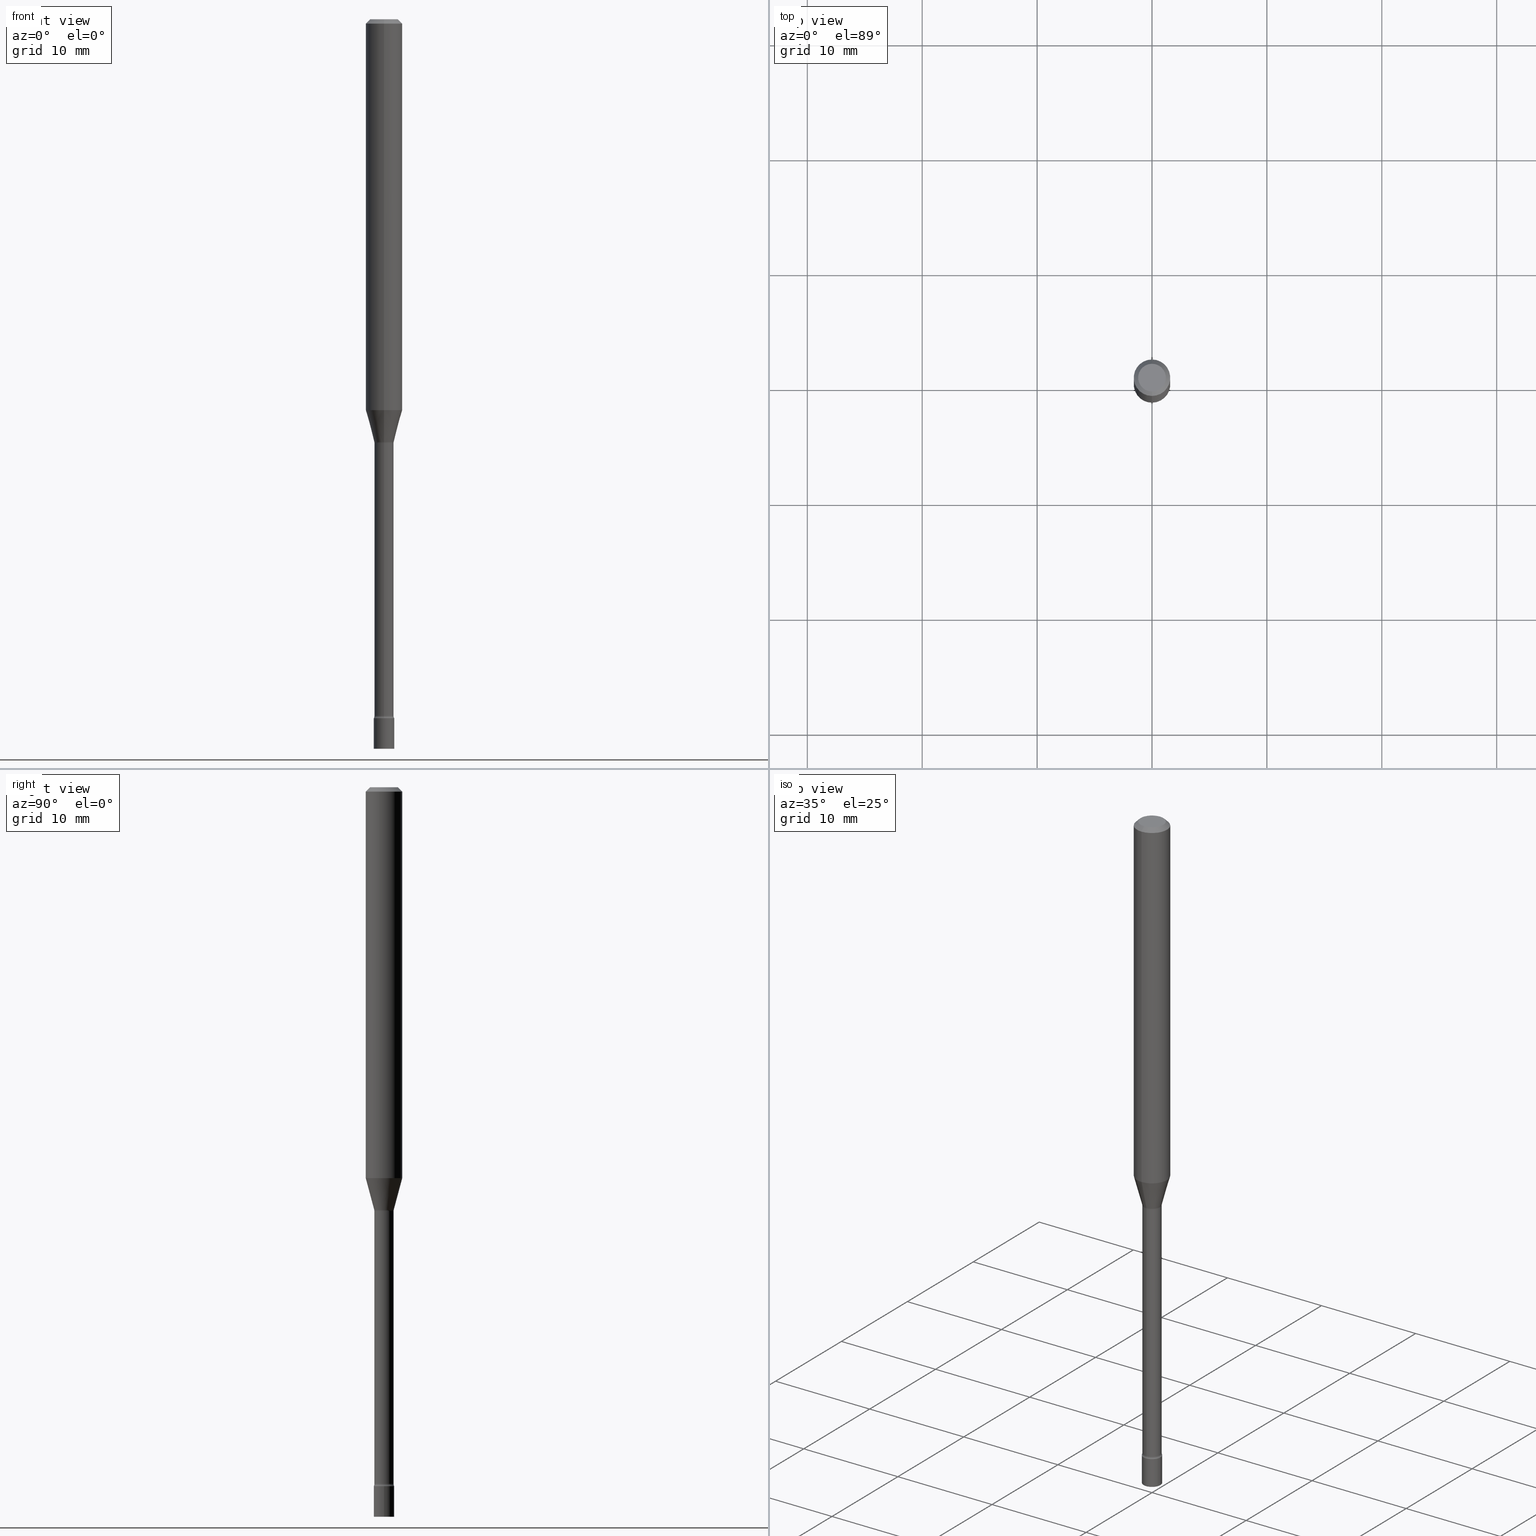
[diagram: canonical four-view strip — front | top / right | iso, engineering-drawing reading convention]
A machine part, canonical four-view strip (front | top / right | iso — engineering-drawing reading convention). The complete STEP part file that produces these views, byte-faithful:
ISO-10303-21;
HEADER;
FILE_DESCRIPTION (( 'STEP AP203' ),
    '1' );
FILE_NAME ('09701.STEP',
    '2024-03-09T01:00:11',
    ( '' ),
    ( '' ),
    'SwSTEP 2.0',
    'SolidWorks 2023',
    '' );
FILE_SCHEMA (( 'CONFIG_CONTROL_DESIGN' ));
ENDSEC;

DATA;
#1 = DIRECTION ( 'NONE',  ( 1.000000000000000000, -6.982962677686265922E-15, 4.876176775795935793E-29 ) ) ;
#2 = ORIENTED_EDGE ( 'NONE', *, *, #472, .T. ) ;
#3 = AXIS2_PLACEMENT_3D ( 'NONE', #302, #264, #430 ) ;
#4 = PLANE ( 'NONE',  #43 ) ;
#5 = DIRECTION ( 'NONE',  ( 6.982962677686265922E-15, 1.000000000000000000, -3.491411876045848246E-15 ) ) ;
#6 = CARTESIAN_POINT ( 'NONE',  ( -0.03500000000000000333, -8.296710619302563893E-15, -2.500000000000000000 ) ) ;
#7 = EDGE_CURVE ( 'NONE', #162, #398, #135, .T. ) ;
#8 = TOROIDAL_SURFACE ( 'NONE', #477, 0.04790000000000008834, 0.01500000000000003067 ) ;
#9 = DIRECTION ( 'NONE',  ( 1.000000000000000000, -6.982962677686265922E-15, 4.876176775795936353E-29 ) ) ;
#10 = ORIENTED_EDGE ( 'NONE', *, *, #128, .T. ) ;
#11 = DIRECTION ( 'NONE',  ( -6.982962677686265922E-15, -1.000000000000000000, 0.000000000000000000 ) ) ;
#12 = FACE_OUTER_BOUND ( 'NONE', #333, .T. ) ;
#13 = EDGE_CURVE ( 'NONE', #439, #66, #436, .T. ) ;
#14 = PRODUCT_DEFINITION_SHAPE ( 'NONE', 'NONE',  #453 ) ;
#15 = CARTESIAN_POINT ( 'NONE',  ( 0.000000000000000000, 0.000000000000000000, 0.000000000000000000 ) ) ;
#16 = TOROIDAL_SURFACE ( 'NONE', #57, 0.04789999999999999813, 0.01500000000000002720 ) ;
#17 = PERSON_AND_ORGANIZATION ( #462, #158 ) ;
#18 = FACE_OUTER_BOUND ( 'NONE', #138, .T. ) ;
#19 = EDGE_LOOP ( 'NONE', ( #284, #69 ) ) ;
#20 = PERSON_AND_ORGANIZATION ( #462, #158 ) ;
#21 = ORIENTED_EDGE ( 'NONE', *, *, #243, .T. ) ;
#22 = DATE_TIME_ROLE ( 'creation_date' ) ;
#23 = DIRECTION ( 'NONE',  ( -6.982962677686265922E-15, -1.000000000000000000, 4.370956789862821150E-15 ) ) ;
#24 = CONICAL_SURFACE ( 'NONE', #426, 0.06250000000000000000, 0.7853981633974483900 ) ;
#25 = CARTESIAN_POINT ( 'NONE',  ( 2.412292587906127904E-16, 0.03289999999999172753, -2.387345589506696175 ) ) ;
#26 = ORIENTED_EDGE ( 'NONE', *, *, #509, .F. ) ;
#27 = AXIS2_PLACEMENT_3D ( 'NONE', #274, #121, #193 ) ;
#28 = LINE ( 'NONE', #420, #309 ) ;
#29 = CARTESIAN_POINT ( 'NONE',  ( 5.857013961754386162E-29, -8.361931443129805162E-15, -2.395000000000000018 ) ) ;
#30 = CC_DESIGN_PERSON_AND_ORGANIZATION_ASSIGNMENT ( #20, #212, ( #52 ) ) ;
#31 = CARTESIAN_POINT ( 'NONE',  ( 3.668275967695865056E-31, -5.237117814068782255E-17, -0.01500000000000003067 ) ) ;
#32 = FACE_OUTER_BOUND ( 'NONE', #19, .T. ) ;
#33 = EDGE_LOOP ( 'NONE', ( #149, #251, #21, #186 ) ) ;
#34 = AXIS2_PLACEMENT_3D ( 'NONE', #325, #206, #491 ) ;
#35 = CARTESIAN_POINT ( 'NONE',  ( -2.333085523452891938E-16, -0.03341111260566902164, -1.448092501787273223 ) ) ;
#36 = CARTESIAN_POINT ( 'NONE',  ( -2.333085523452891938E-16, -0.03341111260566902164, -1.448092501787273223 ) ) ;
#37 = PERSON_AND_ORGANIZATION_ROLE ( 'classification_officer' ) ;
#38 = PLANE ( 'NONE',  #199 ) ;
#39 = VERTEX_POINT ( 'NONE', #35 ) ;
#40 = CARTESIAN_POINT ( 'NONE',  ( 2.444036937190778979E-16, 0.03499999999999164196, -2.395000000000000018 ) ) ;
#41 = FACE_OUTER_BOUND ( 'NONE', #223, .T. ) ;
#42 = VECTOR ( 'NONE', #510, 39.37007874015748143 ) ;
#43 = AXIS2_PLACEMENT_3D ( 'NONE', #481, #431, #5 ) ;
#44 = CARTESIAN_POINT ( 'NONE',  ( 0.000000000000000000, 0.000000000000000000, 0.000000000000000000 ) ) ;
#45 =( CONVERSION_BASED_UNIT ( 'INCH', #163 ) LENGTH_UNIT ( ) NAMED_UNIT ( #352 ) );
#46 = EDGE_CURVE ( 'NONE', #39, #231, #327, .T. ) ;
#47 = CARTESIAN_POINT ( 'NONE',  ( 5.838294968381408865E-29, -8.335206743429354077E-15, -2.387345589506696175 ) ) ;
#48 = ORIENTED_EDGE ( 'NONE', *, *, #433, .F. ) ;
#49 =( GEOMETRIC_REPRESENTATION_CONTEXT ( 3 ) GLOBAL_UNCERTAINTY_ASSIGNED_CONTEXT ( ( #411 ) ) GLOBAL_UNIT_ASSIGNED_CONTEXT ( ( #45, #363, #405 ) ) REPRESENTATION_CONTEXT ( 'NONE', 'WORKASPACE' ) );
#50 = VECTOR ( 'NONE', #51, 39.37007874015748143 ) ;
#51 = DIRECTION ( 'NONE',  ( -2.445468806185136877E-29, 3.491481338843145188E-15, 1.000000000000000000 ) ) ;
#52 = PRODUCT_DEFINITION_FORMATION_WITH_SPECIFIED_SOURCE ( 'ANY', '', #321, .NOT_KNOWN. ) ;
#53 = ADVANCED_FACE ( 'NONE', ( #222 ), #256, .F. ) ;
#54 = CARTESIAN_POINT ( 'NONE',  ( -2.297394720958425553E-16, -0.03290000000000506408, -1.451974787463811145 ) ) ;
#55 = CARTESIAN_POINT ( 'NONE',  ( 4.440892098500625669E-16, 0.06250000000000000000, -2.182132422528654908E-16 ) ) ;
#56 = PERSON_AND_ORGANIZATION ( #462, #158 ) ;
#57 = AXIS2_PLACEMENT_3D ( 'NONE', #471, #252, #104 ) ;
#58 = LOCAL_TIME ( 20, 0, 11.00000000000000000, #331 ) ;
#59 = DIRECTION ( 'NONE',  ( 1.000000000000000000, -6.982962677686276966E-15, 0.000000000000000000 ) ) ;
#60 = VERTEX_POINT ( 'NONE', #25 ) ;
#61 = CC_DESIGN_PERSON_AND_ORGANIZATION_ASSIGNMENT ( #178, #37, ( #501 ) ) ;
#62 = APPROVAL_DATE_TIME ( #518, #71 ) ;
#63 = DIRECTION ( 'NONE',  ( -6.982962677686265922E-15, -1.000000000000000000, 3.491411876045848246E-15 ) ) ;
#64 = DIRECTION ( 'NONE',  ( 1.839019923739599921E-15, 0.2588190451025249028, 0.9659258262890670910 ) ) ;
#65 = ORIENTED_EDGE ( 'NONE', *, *, #334, .F. ) ;
#66 = VERTEX_POINT ( 'NONE', #443 ) ;
#67 = ORIENTED_EDGE ( 'NONE', *, *, #415, .F. ) ;
#68 = CARTESIAN_POINT ( 'NONE',  ( 5.857013961754386162E-29, -8.361931443129805162E-15, -2.395000000000000018 ) ) ;
#69 = ORIENTED_EDGE ( 'NONE', *, *, #227, .T. ) ;
#70 = CIRCLE ( 'NONE', #136, 0.04749999999999999362 ) ;
#71 = APPROVAL ( #134, 'UNSPECIFIED' ) ;
#72 = FACE_OUTER_BOUND ( 'NONE', #257, .T. ) ;
#73 = CARTESIAN_POINT ( 'NONE',  ( 3.668275967695865056E-31, -5.237117814068782255E-17, -0.01500000000000003067 ) ) ;
#74 = FACE_OUTER_BOUND ( 'NONE', #173, .T. ) ;
#75 = LOCAL_TIME ( 20, 0, 11.00000000000000000, #111 ) ;
#76 = AXIS2_PLACEMENT_3D ( 'NONE', #218, #418, #59 ) ;
#77 = COORDINATED_UNIVERSAL_TIME_OFFSET ( 5, 0, .BEHIND. ) ;
#78 = AXIS2_PLACEMENT_3D ( 'NONE', #354, #335, #371 ) ;
#79 = ORIENTED_EDGE ( 'NONE', *, *, #189, .T. ) ;
#80 = EDGE_CURVE ( 'NONE', #60, #234, #228, .T. ) ;
#81 = DIRECTION ( 'NONE',  ( -2.438088387897960049E-29, 3.491481338843145188E-15, 1.000000000000000000 ) ) ;
#82 = DIRECTION ( 'NONE',  ( -2.445517311797238408E-29, 3.491411876045847852E-15, 1.000000000000000000 ) ) ;
#83 = CIRCLE ( 'NONE', #91, 0.06250000000000000000 ) ;
#84 = ADVANCED_FACE ( 'NONE', ( #343 ), #24, .T. ) ;
#85 = CARTESIAN_POINT ( 'NONE',  ( 0.03500000000000000333, -2.444036937190193250E-16, 1.706661871528577808E-30 ) ) ;
#86 = VERTEX_POINT ( 'NONE', #179 ) ;
#87 = FACE_OUTER_BOUND ( 'NONE', #114, .T. ) ;
#88 = EDGE_CURVE ( 'NONE', #144, #234, #338, .T. ) ;
#89 = ORIENTED_EDGE ( 'NONE', *, *, #46, .F. ) ;
#90 = CC_DESIGN_DATE_AND_TIME_ASSIGNMENT ( #254, #22, ( #453 ) ) ;
#91 = AXIS2_PLACEMENT_3D ( 'NONE', #73, #372, #190 ) ;
#92 = DIRECTION ( 'NONE',  ( -2.445468806185136597E-29, 3.491481338843145583E-15, 1.000000000000000000 ) ) ;
#93 = APPLICATION_PROTOCOL_DEFINITION ( 'international standard', 'config_control_design', 1994, #316 ) ;
#94 = APPROVAL_ROLE ( '' ) ;
#95 = CIRCLE ( 'NONE', #478, 0.03500000000000000333 ) ;
#96 = CARTESIAN_POINT ( 'NONE',  ( 4.440892098500949595E-16, 0.06249999999999528849, -1.339531296095961999 ) ) ;
#97 = ADVANCED_FACE ( 'NONE', ( #18 ), #170, .T. ) ;
#98 = DIRECTION ( 'NONE',  ( -2.445517311797237847E-29, 3.491411876045848246E-15, 1.000000000000000000 ) ) ;
#99 = PERSON_AND_ORGANIZATION ( #462, #158 ) ;
#100 = DIRECTION ( 'NONE',  ( -2.445517311797238688E-29, 3.491411876045848246E-15, 1.000000000000000000 ) ) ;
#101 = COORDINATED_UNIVERSAL_TIME_OFFSET ( 5, 0, .BEHIND. ) ;
#102 = DIRECTION ( 'NONE',  ( 6.982962677686265922E-15, 1.000000000000000000, -3.483106191921935554E-15 ) ) ;
#103 = APPROVAL ( #155, 'UNSPECIFIED' ) ;
#104 = DIRECTION ( 'NONE',  ( -6.982962677686265133E-15, -1.000000000000000000, 3.491411876045848246E-15 ) ) ;
#105 = ORIENTED_EDGE ( 'NONE', *, *, #243, .F. ) ;
#106 = EDGE_LOOP ( 'NONE', ( #489, #373, #474, #461 ) ) ;
#107 = DIRECTION ( 'NONE',  ( -2.445517311797238408E-29, 3.491411876045847852E-15, 1.000000000000000000 ) ) ;
#108 = LINE ( 'NONE', #225, #42 ) ;
#109 = LINE ( 'NONE', #36, #277 ) ;
#110 = ORIENTED_EDGE ( 'NONE', *, *, #160, .F. ) ;
#111 = COORDINATED_UNIVERSAL_TIME_OFFSET ( 5, 0, .BEHIND. ) ;
#112 = ORIENTED_EDGE ( 'NONE', *, *, #467, .T. ) ;
#113 = PLANE ( 'NONE',  #230 ) ;
#114 = EDGE_LOOP ( 'NONE', ( #295, #2, #287, #130 ) ) ;
#115 = CC_DESIGN_APPROVAL ( #103, ( #453 ) ) ;
#116 = ORIENTED_EDGE ( 'NONE', *, *, #7, .T. ) ;
#117 = AXIS2_PLACEMENT_3D ( 'NONE', #296, #376, #182 ) ;
#118 = DIRECTION ( 'NONE',  ( -6.982962677686266711E-15, -1.000000000000000000, 0.000000000000000000 ) ) ;
#119 = CARTESIAN_POINT ( 'NONE',  ( 2.444036937190804617E-16, 0.03499999999999127420, -2.500000000000000000 ) ) ;
#120 = APPROVAL ( #377, 'UNSPECIFIED' ) ;
#121 = DIRECTION ( 'NONE',  ( -2.445468806185136597E-29, 3.491481338843145583E-15, 1.000000000000000000 ) ) ;
#122 = EDGE_LOOP ( 'NONE', ( #315, #330, #404, #105 ) ) ;
#123 = DIRECTION ( 'NONE',  ( -2.445468806185136877E-29, 3.491481338843145188E-15, 1.000000000000000000 ) ) ;
#124 = DIRECTION ( 'NONE',  ( -2.445517311797238408E-29, 3.491411876045847852E-15, 1.000000000000000000 ) ) ;
#125 = AXIS2_PLACEMENT_3D ( 'NONE', #31, #294, #311 ) ;
#126 = VECTOR ( 'NONE', #132, 39.37007874015748143 ) ;
#127 = CARTESIAN_POINT ( 'NONE',  ( 3.541335282204550214E-29, -5.055887358353027920E-15, -1.448092501787273223 ) ) ;
#128 = EDGE_CURVE ( 'NONE', #398, #439, #108, .T. ) ;
#129 =( LENGTH_UNIT ( ) NAMED_UNIT ( * ) SI_UNIT ( $, .METRE. ) );
#130 = ORIENTED_EDGE ( 'NONE', *, *, #480, .F. ) ;
#131 = EDGE_CURVE ( 'NONE', #141, #485, #245, .T. ) ;
#132 = DIRECTION ( 'NONE',  ( -2.445517311797238688E-29, 3.491411876045848246E-15, 1.000000000000000000 ) ) ;
#133 = ORIENTED_EDGE ( 'NONE', *, *, #268, .F. ) ;
#134 = APPROVAL_STATUS ( 'not_yet_approved' ) ;
#135 = CIRCLE ( 'NONE', #444, 0.04749999999999999362 ) ;
#136 = AXIS2_PLACEMENT_3D ( 'NONE', #161, #314, #226 ) ;
#137 = DIRECTION ( 'NONE',  ( -2.445517311797238408E-29, 3.491411876045847852E-15, 1.000000000000000000 ) ) ;
#138 = EDGE_LOOP ( 'NONE', ( #429, #10, #422, #416 ) ) ;
#139 = MECHANICAL_CONTEXT ( 'NONE', #316, 'mechanical' ) ;
#140 = CARTESIAN_POINT ( 'NONE',  ( 0.03500000000000000333, -8.606501500248353382E-15, -2.395000000000000018 ) ) ;
#141 = VERTEX_POINT ( 'NONE', #96 ) ;
#142 = EDGE_CURVE ( 'NONE', #162, #66, #428, .T. ) ;
#143 = DIRECTION ( 'NONE',  ( -6.982962677686265922E-15, -1.000000000000000000, 0.000000000000000000 ) ) ;
#144 = VERTEX_POINT ( 'NONE', #502 ) ;
#145 = DIRECTION ( 'NONE',  ( -6.982962677686265922E-15, -1.000000000000000000, 3.491411876045847852E-15 ) ) ;
#146 = AXIS2_PLACEMENT_3D ( 'NONE', #281, #369, #11 ) ;
#147 = DIRECTION ( 'NONE',  ( -6.982962677686265922E-15, -1.000000000000000000, 0.000000000000000000 ) ) ;
#148 = CC_DESIGN_APPROVAL ( #71, ( #52 ) ) ;
#149 = ORIENTED_EDGE ( 'NONE', *, *, #80, .F. ) ;
#150 = CARTESIAN_POINT ( 'NONE',  ( 3.541335282204550214E-29, -5.055887358353027920E-15, -1.448092501787273223 ) ) ;
#151 = FACE_OUTER_BOUND ( 'NONE', #312, .T. ) ;
#152 = CALENDAR_DATE ( 2024, 8, 3 ) ;
#153 = EDGE_CURVE ( 'NONE', #39, #407, #505, .T. ) ;
#154 = DIRECTION ( 'NONE',  ( -6.982962677686265922E-15, -1.000000000000000000, 3.491411876045847852E-15 ) ) ;
#155 = APPROVAL_STATUS ( 'not_yet_approved' ) ;
#156 = DIRECTION ( 'NONE',  ( -2.445517311797238408E-29, 3.491411876045847852E-15, 1.000000000000000000 ) ) ;
#157 = AXIS2_PLACEMENT_3D ( 'NONE', #265, #82, #118 ) ;
#158 = ORGANIZATION ( 'UNSPECIFIED', 'UNSPECIFIED', '' ) ;
#159 = CARTESIAN_POINT ( 'NONE',  ( 3.550829479035866217E-29, -5.069442016670295650E-15, -1.451974787463811145 ) ) ;
#160 = EDGE_CURVE ( 'NONE', #337, #407, #28, .T. ) ;
#161 = CARTESIAN_POINT ( 'NONE',  ( 7.071753866834961509E-46, -1.009618918501765642E-31, -2.891721041074065741E-17 ) ) ;
#162 = VERTEX_POINT ( 'NONE', #332 ) ;
#163 = LENGTH_MEASURE_WITH_UNIT ( LENGTH_MEASURE( 0.02539999999999999897 ), #129 );
#164 = AXIS2_PLACEMENT_3D ( 'NONE', #127, #167, #412 ) ;
#165 = APPROVAL_PERSON_ORGANIZATION ( #435, #120, #454 ) ;
#166 = CARTESIAN_POINT ( 'NONE',  ( 3.668275967695865056E-31, -5.237117814068782255E-17, -0.01500000000000003067 ) ) ;
#167 = DIRECTION ( 'NONE',  ( -2.445517311797238408E-29, 3.491411876045847852E-15, 1.000000000000000000 ) ) ;
#168 = EDGE_CURVE ( 'NONE', #231, #141, #463, .T. ) ;
#169 = DIRECTION ( 'NONE',  ( -2.445468806185136597E-29, 3.491481338843145583E-15, 1.000000000000000000 ) ) ;
#170 = CONICAL_SURFACE ( 'NONE', #492, 0.06250000000000000000, 0.7853981633974483900 ) ;
#171 = CIRCLE ( 'NONE', #437, 0.03341111260566397012 ) ;
#172 = CARTESIAN_POINT ( 'NONE',  ( 6.113672015462842613E-29, -8.728703347107864943E-15, -2.500000000000000000 ) ) ;
#173 = EDGE_LOOP ( 'NONE', ( #386, #89, #275, #350 ) ) ;
#174 = EDGE_CURVE ( 'NONE', #485, #439, #293, .T. ) ;
#175 = SECURITY_CLASSIFICATION_LEVEL ( 'unclassified' ) ;
#176 = DIRECTION ( 'NONE',  ( 4.937700262164548042E-15, 0.7071067811865451302, -0.7071067811865499042 ) ) ;
#177 = EDGE_LOOP ( 'NONE', ( #298, #425, #498, #307 ) ) ;
#178 = PERSON_AND_ORGANIZATION ( #462, #158 ) ;
#179 = CARTESIAN_POINT ( 'NONE',  ( 0.03500000000000000333, -8.973107040826884909E-15, -2.500000000000000000 ) ) ;
#180 = DATE_TIME_ROLE ( 'classification_date' ) ;
#181 = AXIS2_PLACEMENT_3D ( 'NONE', #159, #229, #394 ) ;
#182 = DIRECTION ( 'NONE',  ( -6.982962677686267499E-15, -1.000000000000000000, 0.000000000000000000 ) ) ;
#183 = VERTEX_POINT ( 'NONE', #140 ) ;
#184 = DIRECTION ( 'NONE',  ( 6.982962677686265922E-15, 1.000000000000000000, -3.483106191921935554E-15 ) ) ;
#185 = CARTESIAN_POINT ( 'NONE',  ( 2.486899575160936616E-16, 0.03499999999999165584, -2.395000000000000018 ) ) ;
#186 = ORIENTED_EDGE ( 'NONE', *, *, #88, .T. ) ;
#187 = CC_DESIGN_APPROVAL ( #120, ( #501 ) ) ;
#188 = ORIENTED_EDGE ( 'NONE', *, *, #382, .T. ) ;
#189 = EDGE_CURVE ( 'NONE', #60, #351, #385, .T. ) ;
#190 = DIRECTION ( 'NONE',  ( -6.982962677686265922E-15, -1.000000000000000000, 3.483106191921935554E-15 ) ) ;
#191 = ORIENTED_EDGE ( 'NONE', *, *, #433, .T. ) ;
#192 = EDGE_CURVE ( 'NONE', #231, #351, #486, .T. ) ;
#193 = DIRECTION ( 'NONE',  ( 1.000000000000000000, -6.982962677686265922E-15, 4.876176775795936353E-29 ) ) ;
#194 = ORIENTED_EDGE ( 'NONE', *, *, #345, .T. ) ;
#195 = ORIENTED_EDGE ( 'NONE', *, *, #258, .T. ) ;
#196 = DIRECTION ( 'NONE',  ( -6.982962677686265922E-15, -1.000000000000000000, 0.000000000000000000 ) ) ;
#197 = EDGE_CURVE ( 'NONE', #234, #144, #457, .T. ) ;
#198 = AXIS2_PLACEMENT_3D ( 'NONE', #68, #137, #378 ) ;
#199 = AXIS2_PLACEMENT_3D ( 'NONE', #119, #519, #387 ) ;
#200 = CARTESIAN_POINT ( 'NONE',  ( 3.541335282204550214E-29, -5.055887358353027920E-15, -1.448092501787273223 ) ) ;
#201 = CARTESIAN_POINT ( 'NONE',  ( 3.403499704291468938E-16, 0.04789999999999175473, -2.387345589506696619 ) ) ;
#202 = CARTESIAN_POINT ( 'NONE',  ( 5.856897790813402508E-29, -8.362097806529333416E-15, -2.395000000000000018 ) ) ;
#203 = AXIS2_PLACEMENT_3D ( 'NONE', #40, #98, #63 ) ;
#204 = AXIS2_PLACEMENT_3D ( 'NONE', #47, #367, #209 ) ;
#205 = CIRCLE ( 'NONE', #506, 0.03500000000000000333 ) ;
#206 = DIRECTION ( 'NONE',  ( -2.445517311797238408E-29, 3.491411876045847852E-15, 1.000000000000000000 ) ) ;
#207 = CARTESIAN_POINT ( 'NONE',  ( -4.364351673553912750E-16, -0.06250000000000005551, -0.01499999999999981209 ) ) ;
#208 = DIRECTION ( 'NONE',  ( -2.445517311797238408E-29, 3.491411876045847852E-15, 1.000000000000000000 ) ) ;
#209 = DIRECTION ( 'NONE',  ( -6.982962677686266711E-15, -1.000000000000000000, 0.000000000000000000 ) ) ;
#210 = ADVANCED_FACE ( 'NONE', ( #465 ), #16, .F. ) ;
#211 = AXIS2_PLACEMENT_3D ( 'NONE', #15, #124, #450 ) ;
#212 = PERSON_AND_ORGANIZATION_ROLE ( 'design_supplier' ) ;
#213 = CALENDAR_DATE ( 2024, 8, 3 ) ;
#214 = MANIFOLD_SOLID_BREP ( 'Body-Move/Copy2[1]', #267 ) ;
#215 = CARTESIAN_POINT ( 'NONE',  ( 0.000000000000000000, 0.000000000000000000, 0.000000000000000000 ) ) ;
#216 = EDGE_LOOP ( 'NONE', ( #482, #253 ) ) ;
#217 = CALENDAR_DATE ( 2024, 8, 3 ) ;
#218 = CARTESIAN_POINT ( 'NONE',  ( 5.856897790813402508E-29, -8.362097806529333416E-15, -2.395000000000000018 ) ) ;
#219 = PERSON_AND_ORGANIZATION_ROLE ( 'design_owner' ) ;
#220 = CIRCLE ( 'NONE', #76, 0.03500000000000000333 ) ;
#221 = CARTESIAN_POINT ( 'NONE',  ( 3.275846974296866938E-29, -4.676855475524527085E-15, -1.339531296095961554 ) ) ;
#222 = FACE_OUTER_BOUND ( 'NONE', #216, .T. ) ;
#223 = EDGE_LOOP ( 'NONE', ( #291, #384, #322, #65 ) ) ;
#224 = EDGE_LOOP ( 'NONE', ( #513, #391, #464, #456 ) ) ;
#225 = CARTESIAN_POINT ( 'NONE',  ( -4.287811248607203282E-16, -0.06250000000000005551, -0.01499999999999981209 ) ) ;
#226 = DIRECTION ( 'NONE',  ( -6.982962677686266711E-15, -1.000000000000000000, 3.491411876045848246E-15 ) ) ;
#227 = EDGE_CURVE ( 'NONE', #271, #183, #220, .T. ) ;
#228 = CIRCLE ( 'NONE', #503, 0.01500000000000002720 ) ;
#229 = DIRECTION ( 'NONE',  ( -2.445517311797238408E-29, 3.491411876045847852E-15, 1.000000000000000000 ) ) ;
#230 = AXIS2_PLACEMENT_3D ( 'NONE', #304, #81, #1 ) ;
#231 = VERTEX_POINT ( 'NONE', #261 ) ;
#232 = CC_DESIGN_SECURITY_CLASSIFICATION ( #501, ( #52 ) ) ;
#233 = SHAPE_DEFINITION_REPRESENTATION ( #14, #499 ) ;
#234 = VERTEX_POINT ( 'NONE', #185 ) ;
#235 = DIRECTION ( 'NONE',  ( -6.982962677686265133E-15, -1.000000000000000000, 3.491411876045848246E-15 ) ) ;
#236 = DIRECTION ( 'NONE',  ( 1.000000000000000000, -7.105427357601001070E-15, 4.926314657868158942E-29 ) ) ;
#237 = ADVANCED_FACE ( 'NONE', ( #72 ), #346, .T. ) ;
#238 = DIRECTION ( 'NONE',  ( -2.445517311797238408E-29, 3.491411876045847852E-15, 1.000000000000000000 ) ) ;
#239 = DIRECTION ( 'NONE',  ( -2.445517311797238408E-29, 3.491411876045847852E-15, 1.000000000000000000 ) ) ;
#240 = CIRCLE ( 'NONE', #204, 0.03290000000000006114 ) ;
#241 = VECTOR ( 'NONE', #283, 39.37007874015748143 ) ;
#242 = FACE_OUTER_BOUND ( 'NONE', #106, .T. ) ;
#243 = EDGE_CURVE ( 'NONE', #337, #144, #427, .T. ) ;
#244 = CYLINDRICAL_SURFACE ( 'NONE', #211, 0.03290000000000002645 ) ;
#245 = CIRCLE ( 'NONE', #399, 0.06250000000000000000 ) ;
#246 = AXIS2_PLACEMENT_3D ( 'NONE', #356, #156, #308 ) ;
#247 = APPROVAL_PERSON_ORGANIZATION ( #500, #71, #94 ) ;
#248 = DIRECTION ( 'NONE',  ( -6.982962677686265922E-15, -1.000000000000000000, 0.000000000000000000 ) ) ;
#249 = CC_DESIGN_PERSON_AND_ORGANIZATION_ASSIGNMENT ( #292, #219, ( #321 ) ) ;
#250 = LINE ( 'NONE', #55, #241 ) ;
#251 = ORIENTED_EDGE ( 'NONE', *, *, #345, .F. ) ;
#252 = DIRECTION ( 'NONE',  ( -2.445517311797238408E-29, 3.491411876045847852E-15, 1.000000000000000000 ) ) ;
#253 = ORIENTED_EDGE ( 'NONE', *, *, #197, .F. ) ;
#254 = DATE_AND_TIME ( #342, #458 ) ;
#255 = CARTESIAN_POINT ( 'NONE',  ( 3.403499704291233759E-16, 0.04789999999999492580, -1.451974787463811367 ) ) ;
#256 = PLANE ( 'NONE',  #203 ) ;
#257 = EDGE_LOOP ( 'NONE', ( #361, #396, #449, #349 ) ) ;
#258 = EDGE_CURVE ( 'NONE', #66, #439, #83, .T. ) ;
#259 = DIRECTION ( 'NONE',  ( 7.105427357601001859E-15, 1.000000000000000000, 0.000000000000000000 ) ) ;
#260 = ADVANCED_FACE ( 'NONE', ( #151 ), #38, .T. ) ;
#261 = CARTESIAN_POINT ( 'NONE',  ( 3.407447217031516106E-16, 0.03341111260565891167, -1.448092501787273223 ) ) ;
#262 = ORIENTED_EDGE ( 'NONE', *, *, #128, .F. ) ;
#263 = ADVANCED_FACE ( 'NONE', ( #32 ), #113, .T. ) ;
#264 = DIRECTION ( 'NONE',  ( -1.000000000000000000, 6.982962677686265922E-15, -4.883557194083112340E-29 ) ) ;
#265 = CARTESIAN_POINT ( 'NONE',  ( 5.838294968381408865E-29, -8.335206743429354077E-15, -2.387345589506696175 ) ) ;
#266 = CALENDAR_DATE ( 2024, 8, 3 ) ;
#267 = CLOSED_SHELL ( 'NONE', ( #317, #263, #515, #260 ) ) ;
#268 = EDGE_CURVE ( 'NONE', #407, #351, #270, .T. ) ;
#269 = FACE_OUTER_BOUND ( 'NONE', #305, .T. ) ;
#270 = CIRCLE ( 'NONE', #181, 0.03289999999999999175 ) ;
#271 = VERTEX_POINT ( 'NONE', #397 ) ;
#272 = LOCAL_TIME ( 20, 0, 11.00000000000000000, #496 ) ;
#273 = DIRECTION ( 'NONE',  ( -6.982962677686265922E-15, -1.000000000000000000, 4.370956789862821150E-15 ) ) ;
#274 = CARTESIAN_POINT ( 'NONE',  ( 0.000000000000000000, 0.000000000000000000, 0.000000000000000000 ) ) ;
#275 = ORIENTED_EDGE ( 'NONE', *, *, #153, .T. ) ;
#276 = DIRECTION ( 'NONE',  ( -6.982962677686265922E-15, -1.000000000000000000, 3.491411876045847852E-15 ) ) ;
#277 = VECTOR ( 'NONE', #479, 39.37007874015748143 ) ;
#278 = DESIGN_CONTEXT ( 'detailed design', #466, 'design' ) ;
#279 = DIRECTION ( 'NONE',  ( -2.445468806185136597E-29, 3.491481338843145583E-15, 1.000000000000000000 ) ) ;
#280 = EDGE_CURVE ( 'NONE', #485, #141, #493, .T. ) ;
#281 = CARTESIAN_POINT ( 'NONE',  ( 3.550829479035866217E-29, -5.069442016670295650E-15, -1.451974787463811145 ) ) ;
#282 = CC_DESIGN_PERSON_AND_ORGANIZATION_ASSIGNMENT ( #99, #285, ( #453 ) ) ;
#283 = DIRECTION ( 'NONE',  ( -2.445517311797238688E-29, 3.491411876045848246E-15, 1.000000000000000000 ) ) ;
#284 = ORIENTED_EDGE ( 'NONE', *, *, #494, .T. ) ;
#285 = PERSON_AND_ORGANIZATION_ROLE ( 'creator' ) ;
#286 = CARTESIAN_POINT ( 'NONE',  ( 2.337685600650730998E-16, 0.03290000000000002645, -1.148674507219084772E-16 ) ) ;
#287 = ORIENTED_EDGE ( 'NONE', *, *, #160, .T. ) ;
#288 = VECTOR ( 'NONE', #64, 39.37007874015748143 ) ;
#289 = DIRECTION ( 'NONE',  ( -2.445517311797238408E-29, 3.491411876045847852E-15, 1.000000000000000000 ) ) ;
#290 = PRODUCT_RELATED_PRODUCT_CATEGORY ( 'detail', '', ( #321 ) ) ;
#291 = ORIENTED_EDGE ( 'NONE', *, *, #46, .T. ) ;
#292 = PERSON_AND_ORGANIZATION ( #462, #158 ) ;
#293 = LINE ( 'NONE', #497, #126 ) ;
#294 = DIRECTION ( 'NONE',  ( -2.445517311797238408E-29, 3.491411876045847852E-15, 1.000000000000000000 ) ) ;
#295 = ORIENTED_EDGE ( 'NONE', *, *, #189, .F. ) ;
#296 = CARTESIAN_POINT ( 'NONE',  ( -3.344839122611366152E-16, -0.04790000000000506353, -1.451974787463810923 ) ) ;
#297 = ADVANCED_FACE ( 'NONE', ( #440 ), #8, .F. ) ;
#298 = ORIENTED_EDGE ( 'NONE', *, *, #448, .F. ) ;
#299 = CC_DESIGN_DATE_AND_TIME_ASSIGNMENT ( #475, #180, ( #501 ) ) ;
#300 = CLOSED_SHELL ( 'NONE', ( #210, #324, #402, #97, #237, #362, #423, #355, #84, #374, #53, #297, #488, #392 ) ) ;
#301 = CIRCLE ( 'NONE', #319, 0.03500000000000000333 ) ;
#302 = CARTESIAN_POINT ( 'NONE',  ( -3.344839122611144285E-16, -0.04790000000000842195, -2.387345589506695731 ) ) ;
#303 = DIRECTION ( 'NONE',  ( 7.105427357601001859E-15, 1.000000000000000000, 0.000000000000000000 ) ) ;
#304 = CARTESIAN_POINT ( 'NONE',  ( 5.856897790813402508E-29, -8.362097806529333416E-15, -2.395000000000000018 ) ) ;
#305 = EDGE_LOOP ( 'NONE', ( #191, #112, #421, #67 ) ) ;
#306 = DIRECTION ( 'NONE',  ( -2.445517311797238408E-29, 3.491411876045847852E-15, 1.000000000000000000 ) ) ;
#307 = ORIENTED_EDGE ( 'NONE', *, *, #258, .F. ) ;
#308 = DIRECTION ( 'NONE',  ( -6.982962677686266711E-15, -1.000000000000000000, 3.491411876045847458E-15 ) ) ;
#309 = VECTOR ( 'NONE', #460, 39.37007874015748143 ) ;
#310 = FACE_OUTER_BOUND ( 'NONE', #177, .T. ) ;
#311 = DIRECTION ( 'NONE',  ( -6.982962677686265922E-15, -1.000000000000000000, 3.483106191921935554E-15 ) ) ;
#312 = EDGE_LOOP ( 'NONE', ( #48, #26 ) ) ;
#313 = DIRECTION ( 'NONE',  ( -6.982962677686266711E-15, -1.000000000000000000, 3.491411876045848246E-15 ) ) ;
#314 = DIRECTION ( 'NONE',  ( -2.445517311797238408E-29, 3.491411876045847852E-15, 1.000000000000000000 ) ) ;
#315 = ORIENTED_EDGE ( 'NONE', *, *, #472, .F. ) ;
#316 = APPLICATION_CONTEXT ( 'configuration controlled 3d designs of mechanical parts and assemblies' ) ;
#317 = ADVANCED_FACE ( 'NONE', ( #269 ), #400, .T. ) ;
#318 = DIRECTION ( 'NONE',  ( -2.445468806185136597E-29, 3.491481338843145583E-15, 1.000000000000000000 ) ) ;
#319 = AXIS2_PLACEMENT_3D ( 'NONE', #172, #318, #408 ) ;
#320 = LOCAL_TIME ( 20, 0, 11.00000000000000000, #101 ) ;
#321 = PRODUCT ( '09701', '09701', '', ( #139 ) ) ;
#322 = ORIENTED_EDGE ( 'NONE', *, *, #280, .F. ) ;
#323 = CARTESIAN_POINT ( 'NONE',  ( 3.541335282204550214E-29, -5.055887358353027920E-15, -1.448092501787273223 ) ) ;
#324 = ADVANCED_FACE ( 'NONE', ( #348 ), #442, .T. ) ;
#325 = CARTESIAN_POINT ( 'NONE',  ( 5.838179168722291637E-29, -8.335372575132118350E-15, -2.387345589506696175 ) ) ;
#326 = ORIENTED_EDGE ( 'NONE', *, *, #227, .F. ) ;
#327 = CIRCLE ( 'NONE', #388, 0.03341111260566397012 ) ;
#328 = AXIS2_PLACEMENT_3D ( 'NONE', #438, #306, #235 ) ;
#329 = DIRECTION ( 'NONE',  ( 1.000000000000000000, -6.982962677686276966E-15, 0.000000000000000000 ) ) ;
#330 = ORIENTED_EDGE ( 'NONE', *, *, #80, .T. ) ;
#331 = COORDINATED_UNIVERSAL_TIME_OFFSET ( 5, 0, .BEHIND. ) ;
#332 = CARTESIAN_POINT ( 'NONE',  ( 3.840629472727447874E-16, 0.04749999999999999362, -1.947592745229184365E-16 ) ) ;
#333 = EDGE_LOOP ( 'NONE', ( #395, #406, #517, #326 ) ) ;
#334 = EDGE_CURVE ( 'NONE', #39, #485, #109, .T. ) ;
#335 = DIRECTION ( 'NONE',  ( 0.000000000000000000, 0.000000000000000000, 1.000000000000000000 ) ) ;
#336 = DIRECTION ( 'NONE',  ( 2.445517311797238408E-29, -3.491411876045847852E-15, -1.000000000000000000 ) ) ;
#337 = VERTEX_POINT ( 'NONE', #516 ) ;
#338 = CIRCLE ( 'NONE', #198, 0.03500000000000000333 ) ;
#339 = CIRCLE ( 'NONE', #146, 0.03289999999999999175 ) ;
#340 = DATE_AND_TIME ( #266, #58 ) ;
#341 = CARTESIAN_POINT ( 'NONE',  ( 4.364351673553919652E-16, 0.06249999999999995143, -0.01500000000000024751 ) ) ;
#342 = CALENDAR_DATE ( 2024, 8, 3 ) ;
#343 = FACE_OUTER_BOUND ( 'NONE', #432, .T. ) ;
#344 = DIRECTION ( 'NONE',  ( 1.000000000000000000, -7.105427357601001070E-15, 4.926314657868158942E-29 ) ) ;
#345 = EDGE_CURVE ( 'NONE', #337, #60, #417, .T. ) ;
#346 = CYLINDRICAL_SURFACE ( 'NONE', #347, 0.06250000000000000000 ) ;
#347 = AXIS2_PLACEMENT_3D ( 'NONE', #215, #512, #145 ) ;
#348 = FACE_OUTER_BOUND ( 'NONE', #379, .T. ) ;
#349 = ORIENTED_EDGE ( 'NONE', *, *, #174, .F. ) ;
#350 = ORIENTED_EDGE ( 'NONE', *, *, #268, .T. ) ;
#351 = VERTEX_POINT ( 'NONE', #476 ) ;
#352 = DIMENSIONAL_EXPONENTS ( 1.000000000000000000, 0.000000000000000000, 0.000000000000000000, 0.000000000000000000, 0.000000000000000000, 0.000000000000000000, 0.000000000000000000 ) ;
#353 = CARTESIAN_POINT ( 'NONE',  ( -3.773273898774340269E-16, -0.04749999999999999362, 1.369248537014371094E-16 ) ) ;
#354 = CARTESIAN_POINT ( 'NONE',  ( 0.000000000000000000, 0.000000000000000000, 0.000000000000000000 ) ) ;
#355 = ADVANCED_FACE ( 'NONE', ( #310 ), #357, .T. ) ;
#356 = CARTESIAN_POINT ( 'NONE',  ( 0.000000000000000000, 0.000000000000000000, 0.000000000000000000 ) ) ;
#357 = CYLINDRICAL_SURFACE ( 'NONE', #451, 0.06250000000000000000 ) ;
#358 = AXIS2_PLACEMENT_3D ( 'NONE', #200, #238, #196 ) ;
#359 = EDGE_LOOP ( 'NONE', ( #116, #188 ) ) ;
#360 = FACE_OUTER_BOUND ( 'NONE', #359, .T. ) ;
#361 = ORIENTED_EDGE ( 'NONE', *, *, #280, .T. ) ;
#362 = ADVANCED_FACE ( 'NONE', ( #41 ), #470, .T. ) ;
#363 =( NAMED_UNIT ( * ) PLANE_ANGLE_UNIT ( ) SI_UNIT ( $, .RADIAN. ) );
#364 = CARTESIAN_POINT ( 'NONE',  ( -4.364351673553590303E-16, -0.06250000000000470457, -1.339531296095961332 ) ) ;
#365 = APPROVAL_PERSON_ORGANIZATION ( #17, #103, #375 ) ;
#366 = AXIS2_PLACEMENT_3D ( 'NONE', #29, #455, #143 ) ;
#367 = DIRECTION ( 'NONE',  ( -2.445517311797238408E-29, 3.491411876045847852E-15, 1.000000000000000000 ) ) ;
#368 = DIRECTION ( 'NONE',  ( -2.445517311797238408E-29, 3.491411876045847852E-15, 1.000000000000000000 ) ) ;
#369 = DIRECTION ( 'NONE',  ( -2.445517311797238408E-29, 3.491411876045847852E-15, 1.000000000000000000 ) ) ;
#370 = TOROIDAL_SURFACE ( 'NONE', #34, 0.04790000000000008834, 0.01500000000000003067 ) ;
#371 = DIRECTION ( 'NONE',  ( 1.000000000000000000, 0.000000000000000000, 0.000000000000000000 ) ) ;
#372 = DIRECTION ( 'NONE',  ( -2.445517311797238408E-29, 3.491411876045847852E-15, 1.000000000000000000 ) ) ;
#373 = ORIENTED_EDGE ( 'NONE', *, *, #441, .T. ) ;
#374 = ADVANCED_FACE ( 'NONE', ( #360 ), #4, .F. ) ;
#375 = APPROVAL_ROLE ( '' ) ;
#376 = DIRECTION ( 'NONE',  ( -1.000000000000000000, 6.982962677686265922E-15, -4.883557194083112340E-29 ) ) ;
#377 = APPROVAL_STATUS ( 'not_yet_approved' ) ;
#378 = DIRECTION ( 'NONE',  ( -6.982962677686265922E-15, -1.000000000000000000, 0.000000000000000000 ) ) ;
#379 = EDGE_LOOP ( 'NONE', ( #194, #79, #133, #110 ) ) ;
#380 = AXIS2_PLACEMENT_3D ( 'NONE', #445, #390, #273 ) ;
#381 = PERSON_AND_ORGANIZATION_ROLE ( 'creator' ) ;
#382 = EDGE_CURVE ( 'NONE', #398, #162, #70, .T. ) ;
#383 = DIRECTION ( 'NONE',  ( 2.445517311797238408E-29, -3.491411876045847852E-15, -1.000000000000000000 ) ) ;
#384 = ORIENTED_EDGE ( 'NONE', *, *, #168, .T. ) ;
#385 = LINE ( 'NONE', #286, #409 ) ;
#386 = ORIENTED_EDGE ( 'NONE', *, *, #192, .F. ) ;
#387 = DIRECTION ( 'NONE',  ( -1.000000000000000000, 6.982962677686265922E-15, -4.876176775795935793E-29 ) ) ;
#388 = AXIS2_PLACEMENT_3D ( 'NONE', #150, #107, #147 ) ;
#389 = VECTOR ( 'NONE', #123, 39.37007874015748143 ) ;
#390 = DIRECTION ( 'NONE',  ( -2.445517311797238408E-29, 3.491411876045847852E-15, 1.000000000000000000 ) ) ;
#391 = ORIENTED_EDGE ( 'NONE', *, *, #192, .T. ) ;
#392 = ADVANCED_FACE ( 'NONE', ( #74 ), #469, .F. ) ;
#393 = MANIFOLD_SOLID_BREP ( 'Body-Move/Copy2[2]', #300 ) ;
#394 = DIRECTION ( 'NONE',  ( -6.982962677686265922E-15, -1.000000000000000000, 0.000000000000000000 ) ) ;
#395 = ORIENTED_EDGE ( 'NONE', *, *, #467, .F. ) ;
#396 = ORIENTED_EDGE ( 'NONE', *, *, #448, .T. ) ;
#397 = CARTESIAN_POINT ( 'NONE',  ( -0.03500000000000000333, -8.296710619302563893E-15, -2.395000000000000018 ) ) ;
#398 = VERTEX_POINT ( 'NONE', #353 ) ;
#399 = AXIS2_PLACEMENT_3D ( 'NONE', #221, #289, #23 ) ;
#400 = CYLINDRICAL_SURFACE ( 'NONE', #27, 0.03500000000000000333 ) ;
#401 = CONICAL_SURFACE ( 'NONE', #164, 0.03341111260566397012, 0.2617993877991502405 ) ;
#402 = ADVANCED_FACE ( 'NONE', ( #414 ), #370, .F. ) ;
#403 = LINE ( 'NONE', #85, #389 ) ;
#404 = ORIENTED_EDGE ( 'NONE', *, *, #197, .T. ) ;
#405 =( NAMED_UNIT ( * ) SI_UNIT ( $, .STERADIAN. ) SOLID_ANGLE_UNIT ( ) );
#406 = ORIENTED_EDGE ( 'NONE', *, *, #509, .T. ) ;
#407 = VERTEX_POINT ( 'NONE', #54 ) ;
#408 = DIRECTION ( 'NONE',  ( 1.000000000000000000, -6.982962677686276966E-15, 0.000000000000000000 ) ) ;
#409 = VECTOR ( 'NONE', #100, 39.37007874015748143 ) ;
#410 = CC_DESIGN_PERSON_AND_ORGANIZATION_ASSIGNMENT ( #56, #381, ( #52 ) ) ;
#411 = UNCERTAINTY_MEASURE_WITH_UNIT (LENGTH_MEASURE( 1.000000000000000082E-05 ), #45, 'distance_accuracy_value', 'NONE');
#412 = DIRECTION ( 'NONE',  ( -6.982962677686265922E-15, -1.000000000000000000, 0.000000000000000000 ) ) ;
#413 = CARTESIAN_POINT ( 'NONE',  ( 7.071753866834961509E-46, -1.009618918501765642E-31, -2.891721041074065741E-17 ) ) ;
#414 = FACE_OUTER_BOUND ( 'NONE', #122, .T. ) ;
#415 = EDGE_CURVE ( 'NONE', #86, #183, #403, .T. ) ;
#416 = ORIENTED_EDGE ( 'NONE', *, *, #142, .F. ) ;
#417 = CIRCLE ( 'NONE', #157, 0.03290000000000006114 ) ;
#418 = DIRECTION ( 'NONE',  ( -2.445468806185136597E-29, 3.491481338843145583E-15, 1.000000000000000000 ) ) ;
#419 = DATE_AND_TIME ( #213, #320 ) ;
#420 = CARTESIAN_POINT ( 'NONE',  ( -2.297394720958783499E-16, -0.03290000000000002645, 1.148674507219084772E-16 ) ) ;
#421 = ORIENTED_EDGE ( 'NONE', *, *, #494, .F. ) ;
#422 = ORIENTED_EDGE ( 'NONE', *, *, #13, .T. ) ;
#423 = ADVANCED_FACE ( 'NONE', ( #242 ), #401, .T. ) ;
#424 = CARTESIAN_POINT ( 'NONE',  ( 3.668275967695865056E-31, -5.237117814068782255E-17, -0.01500000000000003067 ) ) ;
#425 = ORIENTED_EDGE ( 'NONE', *, *, #131, .T. ) ;
#426 = AXIS2_PLACEMENT_3D ( 'NONE', #166, #383, #102 ) ;
#427 = CIRCLE ( 'NONE', #3, 0.01500000000000002720 ) ;
#428 = LINE ( 'NONE', #341, #468 ) ;
#429 = ORIENTED_EDGE ( 'NONE', *, *, #382, .F. ) ;
#430 = DIRECTION ( 'NONE',  ( -6.982962677686267499E-15, -1.000000000000000000, 0.000000000000000000 ) ) ;
#431 = DIRECTION ( 'NONE',  ( 2.445517311797237847E-29, -3.491411876045848246E-15, -1.000000000000000000 ) ) ;
#432 = EDGE_LOOP ( 'NONE', ( #262, #504, #511, #195 ) ) ;
#433 = EDGE_CURVE ( 'NONE', #86, #484, #301, .T. ) ;
#434 = AXIS2_PLACEMENT_3D ( 'NONE', #447, #169, #9 ) ;
#435 = PERSON_AND_ORGANIZATION ( #462, #158 ) ;
#436 = CIRCLE ( 'NONE', #125, 0.06250000000000000000 ) ;
#437 = AXIS2_PLACEMENT_3D ( 'NONE', #323, #368, #248 ) ;
#438 = CARTESIAN_POINT ( 'NONE',  ( 3.550759050110043662E-29, -5.069542874900639233E-15, -1.451974787463811145 ) ) ;
#439 = VERTEX_POINT ( 'NONE', #207 ) ;
#440 = FACE_OUTER_BOUND ( 'NONE', #33, .T. ) ;
#441 = EDGE_CURVE ( 'NONE', #231, #39, #171, .T. ) ;
#442 = CYLINDRICAL_SURFACE ( 'NONE', #246, 0.03290000000000002645 ) ;
#443 = CARTESIAN_POINT ( 'NONE',  ( 4.440892098500955511E-16, 0.06249999999999995143, -0.01500000000000024751 ) ) ;
#444 = AXIS2_PLACEMENT_3D ( 'NONE', #413, #208, #313 ) ;
#445 = CARTESIAN_POINT ( 'NONE',  ( 3.275846974296866938E-29, -4.676855475524527085E-15, -1.339531296095961554 ) ) ;
#446 = CARTESIAN_POINT ( 'NONE',  ( 6.113672015462842613E-29, -8.728703347107864943E-15, -2.500000000000000000 ) ) ;
#447 = CARTESIAN_POINT ( 'NONE',  ( 0.000000000000000000, 0.000000000000000000, 0.000000000000000000 ) ) ;
#448 = EDGE_CURVE ( 'NONE', #141, #66, #250, .T. ) ;
#449 = ORIENTED_EDGE ( 'NONE', *, *, #13, .F. ) ;
#450 = DIRECTION ( 'NONE',  ( -6.982962677686266711E-15, -1.000000000000000000, 3.491411876045847458E-15 ) ) ;
#451 = AXIS2_PLACEMENT_3D ( 'NONE', #44, #239, #276 ) ;
#452 = LINE ( 'NONE', #490, #50 ) ;
#453 = PRODUCT_DEFINITION ( 'UNKNOWN', '', #52, #278 ) ;
#454 = APPROVAL_ROLE ( '' ) ;
#455 = DIRECTION ( 'NONE',  ( -2.445517311797238408E-29, 3.491411876045847852E-15, 1.000000000000000000 ) ) ;
#456 = ORIENTED_EDGE ( 'NONE', *, *, #153, .F. ) ;
#457 = CIRCLE ( 'NONE', #366, 0.03500000000000000333 ) ;
#458 = LOCAL_TIME ( 20, 0, 11.00000000000000000, #77 ) ;
#459 = APPROVAL_DATE_TIME ( #419, #103 ) ;
#460 = DIRECTION ( 'NONE',  ( -2.445517311797238688E-29, 3.491411876045848246E-15, 1.000000000000000000 ) ) ;
#461 = ORIENTED_EDGE ( 'NONE', *, *, #131, .F. ) ;
#462 = PERSON ( 'UNSPECIFIED', 'UNSPECIFIED', 'UNSPECIFIED', ('UNSPECIFIED'), ('UNSPECIFIED'), ('UNSPECIFIED') ) ;
#463 = LINE ( 'NONE', #508, #288 ) ;
#464 = ORIENTED_EDGE ( 'NONE', *, *, #480, .T. ) ;
#465 = FACE_OUTER_BOUND ( 'NONE', #224, .T. ) ;
#466 = APPLICATION_CONTEXT ( 'configuration controlled 3d designs of mechanical parts and assemblies' ) ;
#467 = EDGE_CURVE ( 'NONE', #484, #271, #452, .T. ) ;
#468 = VECTOR ( 'NONE', #176, 39.37007874015748143 ) ;
#469 = TOROIDAL_SURFACE ( 'NONE', #328, 0.04789999999999999813, 0.01500000000000002720 ) ;
#470 = CONICAL_SURFACE ( 'NONE', #358, 0.03341111260566397012, 0.2617993877991502405 ) ;
#471 = CARTESIAN_POINT ( 'NONE',  ( 3.550759050110043662E-29, -5.069542874900639233E-15, -1.451974787463811145 ) ) ;
#472 = EDGE_CURVE ( 'NONE', #60, #337, #240, .T. ) ;
#473 = DIRECTION ( 'NONE',  ( -2.445517311797238408E-29, 3.491411876045847852E-15, 1.000000000000000000 ) ) ;
#474 = ORIENTED_EDGE ( 'NONE', *, *, #334, .T. ) ;
#475 = DATE_AND_TIME ( #217, #75 ) ;
#476 = CARTESIAN_POINT ( 'NONE',  ( 2.337685600651315248E-16, 0.03289999999999491942, -1.451974787463811145 ) ) ;
#477 = AXIS2_PLACEMENT_3D ( 'NONE', #483, #473, #154 ) ;
#478 = AXIS2_PLACEMENT_3D ( 'NONE', #202, #92, #329 ) ;
#479 = DIRECTION ( 'NONE',  ( -1.807323732225329745E-15, -0.2588190451025181305, 0.9659258262890689783 ) ) ;
#480 = EDGE_CURVE ( 'NONE', #351, #407, #339, .T. ) ;
#481 = CARTESIAN_POINT ( 'NONE',  ( 3.316907271900976096E-16, 0.04749999999999999362, -1.803006693175480924E-16 ) ) ;
#482 = ORIENTED_EDGE ( 'NONE', *, *, #88, .F. ) ;
#483 = CARTESIAN_POINT ( 'NONE',  ( 5.838179168722291637E-29, -8.335372575132118350E-15, -2.387345589506696175 ) ) ;
#484 = VERTEX_POINT ( 'NONE', #6 ) ;
#485 = VERTEX_POINT ( 'NONE', #364 ) ;
#486 = CIRCLE ( 'NONE', #514, 0.01500000000000002720 ) ;
#487 = DIRECTION ( 'NONE',  ( 1.000000000000000000, -6.982962677686276966E-15, 0.000000000000000000 ) ) ;
#488 = ADVANCED_FACE ( 'NONE', ( #87 ), #244, .T. ) ;
#489 = ORIENTED_EDGE ( 'NONE', *, *, #168, .F. ) ;
#490 = CARTESIAN_POINT ( 'NONE',  ( -0.03500000000000000333, 2.486899575160350887E-16, -1.721627281589217108E-30 ) ) ;
#491 = DIRECTION ( 'NONE',  ( -6.982962677686265922E-15, -1.000000000000000000, 3.491411876045847852E-15 ) ) ;
#492 = AXIS2_PLACEMENT_3D ( 'NONE', #424, #336, #184 ) ;
#493 = CIRCLE ( 'NONE', #380, 0.06250000000000000000 ) ;
#494 = EDGE_CURVE ( 'NONE', #183, #271, #95, .T. ) ;
#495 = CYLINDRICAL_SURFACE ( 'NONE', #434, 0.03500000000000000333 ) ;
#496 = COORDINATED_UNIVERSAL_TIME_OFFSET ( 5, 0, .BEHIND. ) ;
#497 = CARTESIAN_POINT ( 'NONE',  ( -4.364351673553916201E-16, -0.06250000000000000000, 2.182132422528654908E-16 ) ) ;
#498 = ORIENTED_EDGE ( 'NONE', *, *, #174, .T. ) ;
#499 = ADVANCED_BREP_SHAPE_REPRESENTATION ( '09701', ( #214, #393, #78 ), #49 ) ;
#500 = PERSON_AND_ORGANIZATION ( #462, #158 ) ;
#501 = SECURITY_CLASSIFICATION ( '', '', #175 ) ;
#502 = CARTESIAN_POINT ( 'NONE',  ( -2.444036937189609493E-16, -0.03500000000000837858, -2.395000000000000018 ) ) ;
#503 = AXIS2_PLACEMENT_3D ( 'NONE', #201, #236, #303 ) ;
#504 = ORIENTED_EDGE ( 'NONE', *, *, #7, .F. ) ;
#505 = CIRCLE ( 'NONE', #117, 0.01500000000000002720 ) ;
#506 = AXIS2_PLACEMENT_3D ( 'NONE', #446, #279, #487 ) ;
#507 = APPROVAL_DATE_TIME ( #340, #120 ) ;
#508 = CARTESIAN_POINT ( 'NONE',  ( 2.374002335562078674E-16, 0.03341111260565891861, -1.448092501787273223 ) ) ;
#509 = EDGE_CURVE ( 'NONE', #484, #86, #205, .T. ) ;
#510 = DIRECTION ( 'NONE',  ( -4.851104656540964275E-15, -0.7071067811865500152, -0.7071067811865450192 ) ) ;
#511 = ORIENTED_EDGE ( 'NONE', *, *, #142, .T. ) ;
#512 = DIRECTION ( 'NONE',  ( -2.445517311797238408E-29, 3.491411876045847852E-15, 1.000000000000000000 ) ) ;
#513 = ORIENTED_EDGE ( 'NONE', *, *, #441, .F. ) ;
#514 = AXIS2_PLACEMENT_3D ( 'NONE', #255, #344, #259 ) ;
#515 = ADVANCED_FACE ( 'NONE', ( #12 ), #495, .T. ) ;
#516 = CARTESIAN_POINT ( 'NONE',  ( -2.297394720958201714E-16, -0.03290000000000839475, -2.387345589506696175 ) ) ;
#517 = ORIENTED_EDGE ( 'NONE', *, *, #415, .T. ) ;
#518 = DATE_AND_TIME ( #152, #272 ) ;
#519 = DIRECTION ( 'NONE',  ( 2.438088387897960049E-29, -3.491481338843145188E-15, -1.000000000000000000 ) ) ;
#520 = APPLICATION_PROTOCOL_DEFINITION ( 'international standard', 'config_control_design', 1994, #466 ) ;
ENDSEC;
END-ISO-10303-21;
